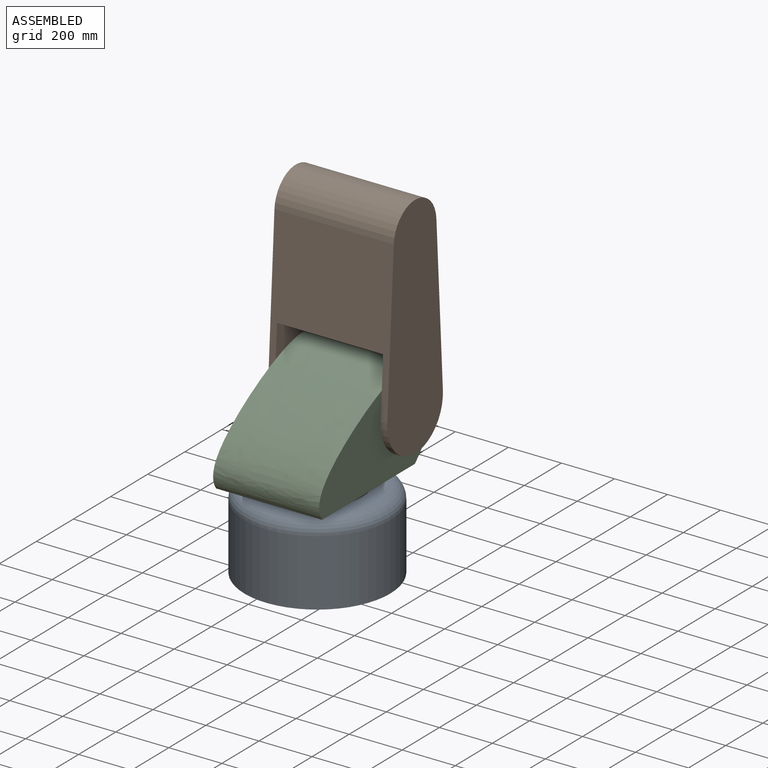
[diagram: assembled view]
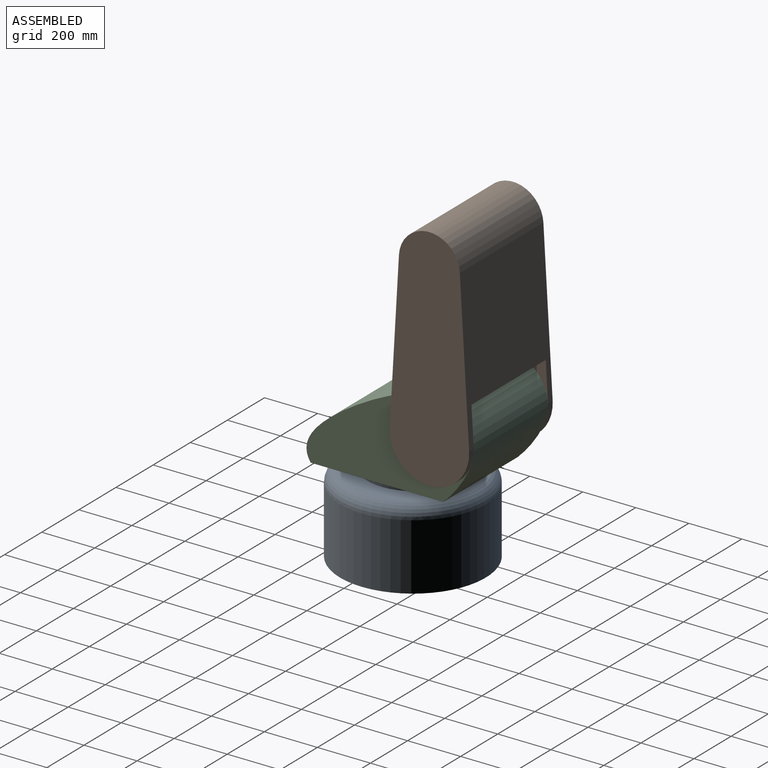
[diagram: assembled view, second angle]
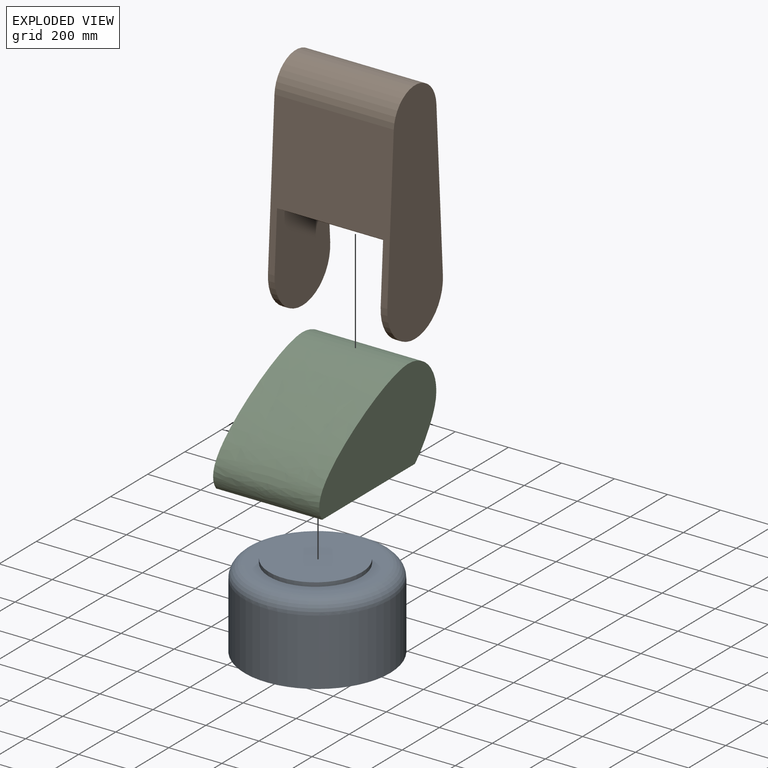
[diagram: exploded view]
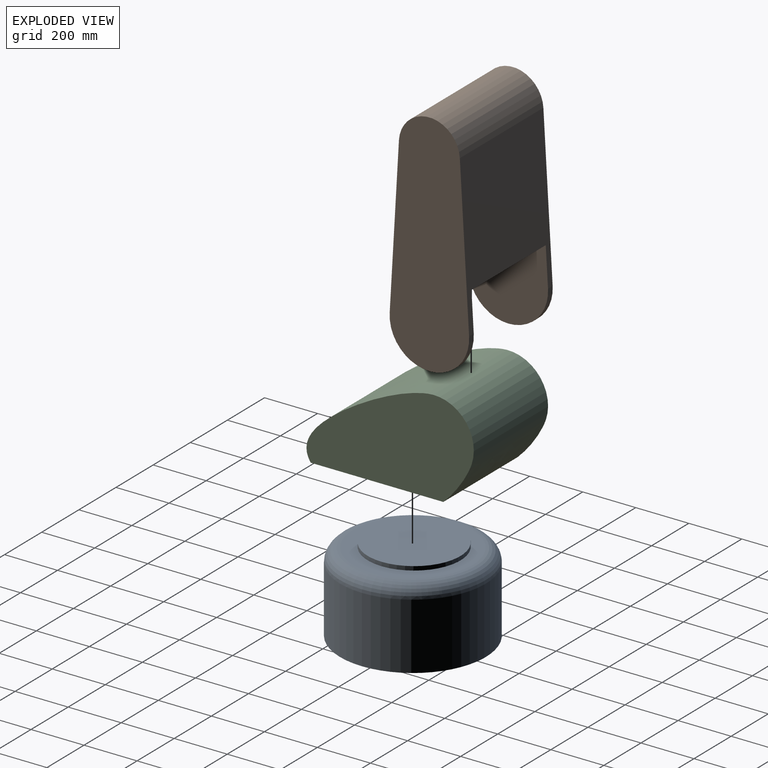
[diagram: exploded view, second angle]
ASSEMBLY  parts=3 mates=2
PART A: 6 faces, bbox 595.3x595.3x315 mm
  f0: cylinder r=275mm len=550mm, axis (0,0,-1), area 431969mm2, adj f2,f5
  f1: plane 450x450mm, normal (0,0,1), area 62831.9mm2, adj f3,f5
  f2: plane 550x550mm, normal (0,0,-1), area 237582.9mm2, adj f0
  f3: cylinder r=175mm len=350mm, axis (0,0,-1), area 16493.4mm2, adj f1,f4
  f4: plane 350x350mm, normal (0,0,1), area 96211.3mm2, adj f3
  f5: torus R=225mm, axis (0,0,1), area 126741mm2, adj f0,f1
PART B: 11 faces, bbox 450x300x865 mm
  f0: plane 597.96x450mm, normal (0,1,0.06), area 210940.4mm2, adj f2,f3,f4,f5,f6,f7,f9,f10
  f1: plane 597.96x450mm, normal (0,-1,0.06), area 179342.4mm2, adj f2,f3,f4,f5,f6,f8,f9,f10
  f2: cylinder r=150mm len=300mm, axis (-1,0,0), area 12218.7mm2, adj f0,f1,f5,f9
  f3: cylinder r=115mm len=450mm, axis (-1,0,0), area 156536.5mm2, adj f0,f1,f5,f6
  f4: cylinder r=150mm len=300mm, axis (-1,0,0), area 12218.7mm2, adj f0,f1,f6,f10
  f5: plane 865x300mm, normal (1,0,0), area 215387.3mm2, adj f0,f1,f2,f3
  f6: plane 865x300mm, normal (-1,0,0), area 215387.3mm2, adj f0,f1,f3,f4
  f7: plane 400x141.2mm, normal (0,0,-1), area 56479.5mm2, adj f0,f8,f9,f10
  f8: plane 400x136.59mm, normal (0,-0.5,-0.87), area 63088.6mm2, adj f1,f7,f9,f10
  f9: plane 383.86x300mm, normal (-1,0,0), area 86084.4mm2, adj f0,f1,f2,f7,f8
  f10: plane 383.86x300mm, normal (1,0,0), area 86084.4mm2, adj f0,f1,f4,f7,f8
PART C: 8 faces, bbox 400x645.6x365 mm
  f0: extruded ~477.48x400mm, area 257528.9mm2, adj f1,f3,f4,f5
  f1: plane 500x400mm, normal (0,0,-1), area 103788.7mm2, adj f0,f2,f4,f5,f6
  f2: extruded ~400x156.39mm, area 76400.5mm2, adj f1,f3,f4,f5
  f3: cylinder r=150mm len=400mm, axis (-1,0,0), area 115513.3mm2, adj f0,f2,f4,f5
  f4: plane 645.61x355mm, normal (1,0,0), area 163192.9mm2, adj f0,f1,f2,f3
  f5: plane 645.61x355mm, normal (-1,0,0), area 163192.9mm2, adj f0,f1,f2,f3
  f6: cylinder r=175mm len=350mm, axis (0,0,1), area 10995.6mm2, adj f1,f7
  f7: plane 350x350mm, normal (0,0,-1), area 96211.3mm2, adj f6
PLACE A at identity fixed
PLACE B t=(-6.86,215,530)mm
PLACE C t=(-6.86,0,325)mm
MATE revolute C.f3 <-> B.f2  axis (1,0,0) through (193.14,215,530)mm
MATE revolute A.f3 <-> C.f6  axis (0,0,1) through (-6.86,0,315)mm
